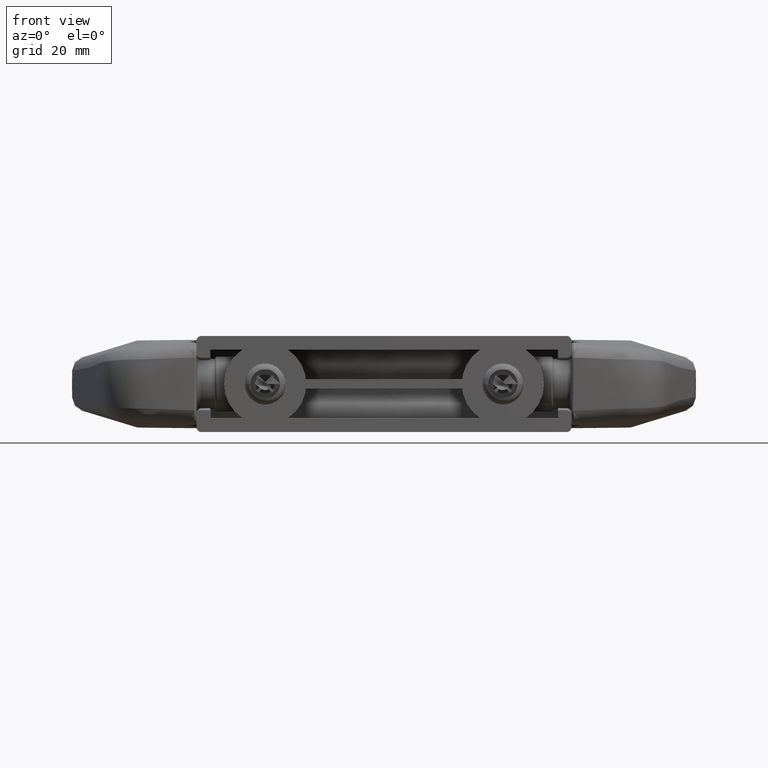
[diagram: clean part render]
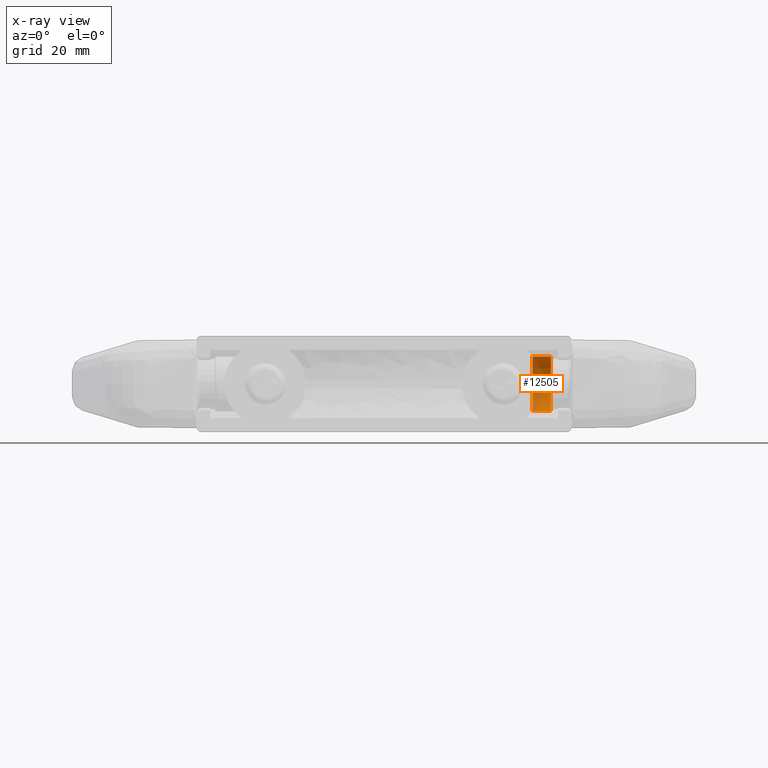
[diagram: x-ray — body ghosted, one internal face saturated and labeled with its STEP entity id]
A machine part, front view, then the same camera in x-ray: the body is ghosted and one INTERNAL B-rep face — a face not visible from any outside direction — is saturated and labeled: STEP entity #12505.
In plain terms, the highlighted cylindrical surface (edge-blend (fillet) strip) has radius 6 mm, axis along (1, 0, 0).
Its self-contained STEP definition (entity closure, byte-faithful):
#135 = EDGE_CURVE ( 'NONE', #2261, #13450, #13594, .T. ) ;
#200 = CARTESIAN_POINT ( 'NONE',  ( 32.00000000000000700, 7.347880794884120700E-016, 6.000000000000000900 ) ) ;
#478 = CARTESIAN_POINT ( 'NONE',  ( 36.50000000000000700, 0.0000000000000000000, -6.000000000000000900 ) ) ;
#767 = EDGE_CURVE ( 'NONE', #13450, #3216, #14535, .T. ) ;
#814 = ORIENTED_EDGE ( 'NONE', *, *, #135, .T. ) ;
#975 = DIRECTION ( 'NONE',  ( 1.000000000000000000, -0.0000000000000000000, -0.0000000000000000000 ) ) ;
#1284 = AXIS2_PLACEMENT_3D ( 'NONE', #7068, #14078, #3908 ) ;
#1288 = VECTOR ( 'NONE', #9801, 1000.000000000000000 ) ;
#1454 = LINE ( 'NONE', #14537, #11012 ) ;
#2188 = EDGE_CURVE ( 'NONE', #12218, #2261, #8033, .T. ) ;
#2221 = CARTESIAN_POINT ( 'NONE',  ( 32.50000000000000700, 7.347880794884120700E-016, 6.000000000000000900 ) ) ;
#2261 = VERTEX_POINT ( 'NONE', #2221 ) ;
#3096 = EDGE_CURVE ( 'NONE', #12218, #3216, #1454, .T. ) ;
#3216 = VERTEX_POINT ( 'NONE', #478 ) ;
#3845 = FACE_OUTER_BOUND ( 'NONE', #8941, .T. ) ;
#3908 = DIRECTION ( 'NONE',  ( 0.0000000000000000000, 0.0000000000000000000, 1.000000000000000000 ) ) ;
#5352 = ORIENTED_EDGE ( 'NONE', *, *, #3096, .F. ) ;
#5753 = AXIS2_PLACEMENT_3D ( 'NONE', #15009, #13858, #15063 ) ;
#5784 = DIRECTION ( 'NONE',  ( 1.000000000000000000, -0.0000000000000000000, -0.0000000000000000000 ) ) ;
#7068 = CARTESIAN_POINT ( 'NONE',  ( 36.50000000000000700, 0.0000000000000000000, 0.0000000000000000000 ) ) ;
#8033 = CIRCLE ( 'NONE', #9005, 6.000000000000000900 ) ;
#8941 = EDGE_LOOP ( 'NONE', ( #10721, #814, #14194, #5352 ) ) ;
#9005 = AXIS2_PLACEMENT_3D ( 'NONE', #12905, #5784, #14099 ) ;
#9601 = CARTESIAN_POINT ( 'NONE',  ( 32.50000000000000700, 0.0000000000000000000, -6.000000000000000900 ) ) ;
#9801 = DIRECTION ( 'NONE',  ( 1.000000000000000000, -0.0000000000000000000, -0.0000000000000000000 ) ) ;
#9806 = CYLINDRICAL_SURFACE ( 'NONE', #5753, 6.000000000000000900 ) ;
#10023 = CARTESIAN_POINT ( 'NONE',  ( 36.50000000000000700, 7.347880794884120700E-016, 6.000000000000000900 ) ) ;
#10721 = ORIENTED_EDGE ( 'NONE', *, *, #2188, .T. ) ;
#11012 = VECTOR ( 'NONE', #975, 1000.000000000000000 ) ;
#12218 = VERTEX_POINT ( 'NONE', #9601 ) ;
#12505 = ADVANCED_FACE ( 'NONE', ( #3845 ), #9806, .T. ) ;
#12905 = CARTESIAN_POINT ( 'NONE',  ( 32.50000000000000700, 0.0000000000000000000, 0.0000000000000000000 ) ) ;
#13450 = VERTEX_POINT ( 'NONE', #10023 ) ;
#13594 = LINE ( 'NONE', #200, #1288 ) ;
#13858 = DIRECTION ( 'NONE',  ( 1.000000000000000000, -0.0000000000000000000, -0.0000000000000000000 ) ) ;
#14078 = DIRECTION ( 'NONE',  ( -1.000000000000000000, 0.0000000000000000000, 0.0000000000000000000 ) ) ;
#14099 = DIRECTION ( 'NONE',  ( 0.0000000000000000000, 0.0000000000000000000, 1.000000000000000000 ) ) ;
#14194 = ORIENTED_EDGE ( 'NONE', *, *, #767, .T. ) ;
#14535 = CIRCLE ( 'NONE', #1284, 6.000000000000000900 ) ;
#14537 = CARTESIAN_POINT ( 'NONE',  ( 32.00000000000000700, 0.0000000000000000000, -6.000000000000000900 ) ) ;
#15009 = CARTESIAN_POINT ( 'NONE',  ( 32.00000000000000700, 0.0000000000000000000, 0.0000000000000000000 ) ) ;
#15063 = DIRECTION ( 'NONE',  ( 0.0000000000000000000, 0.0000000000000000000, -1.000000000000000000 ) ) ;